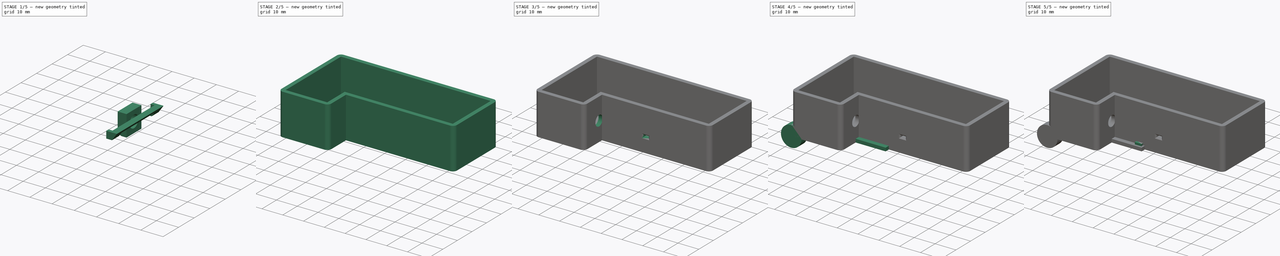
[diagram: build sequence overview — one tinted view per stage of 5, left to right]
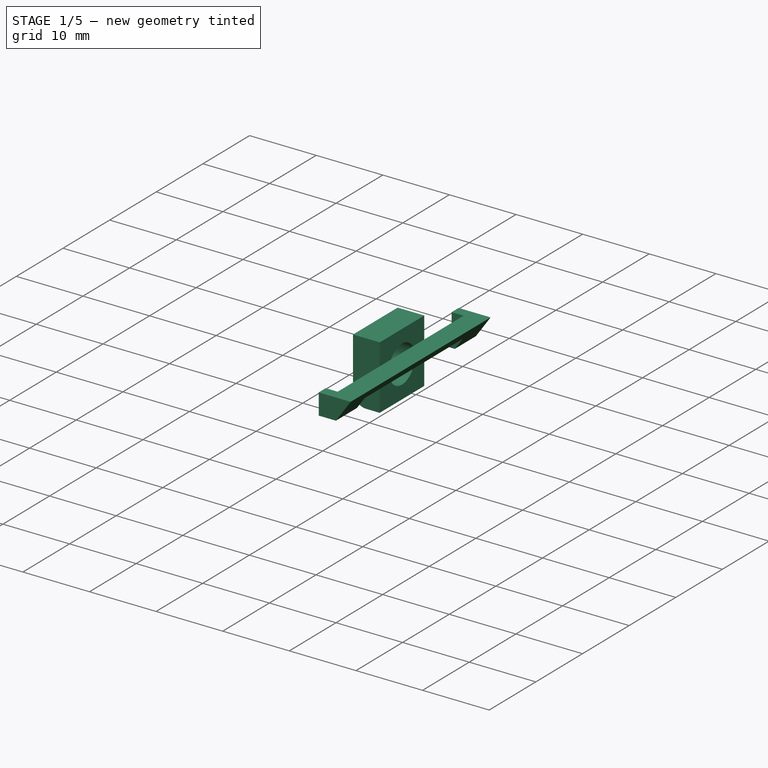
[diagram: stage 1 of 5 — iso view after this stage's code; geometry added in this stage tinted green]
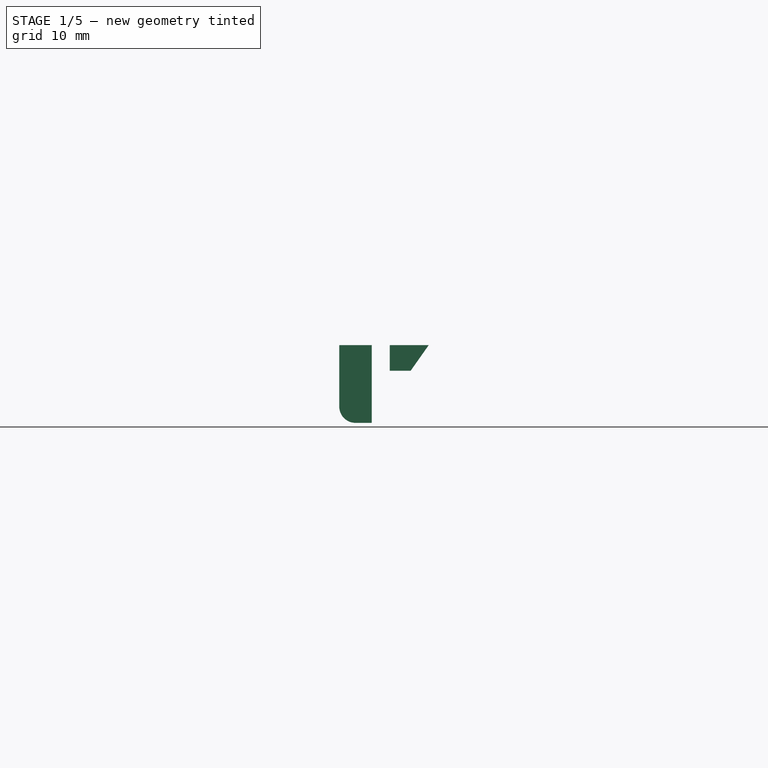
[diagram: stage 1 of 5 — front view after this stage's code; geometry added in this stage tinted green]
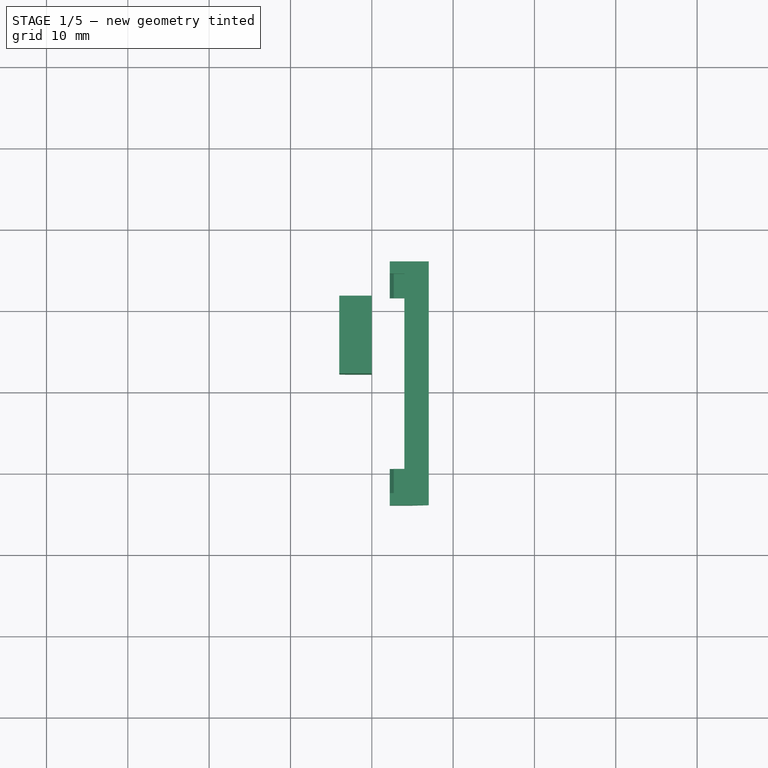
[diagram: stage 1 of 5 — top view after this stage's code; geometry added in this stage tinted green]
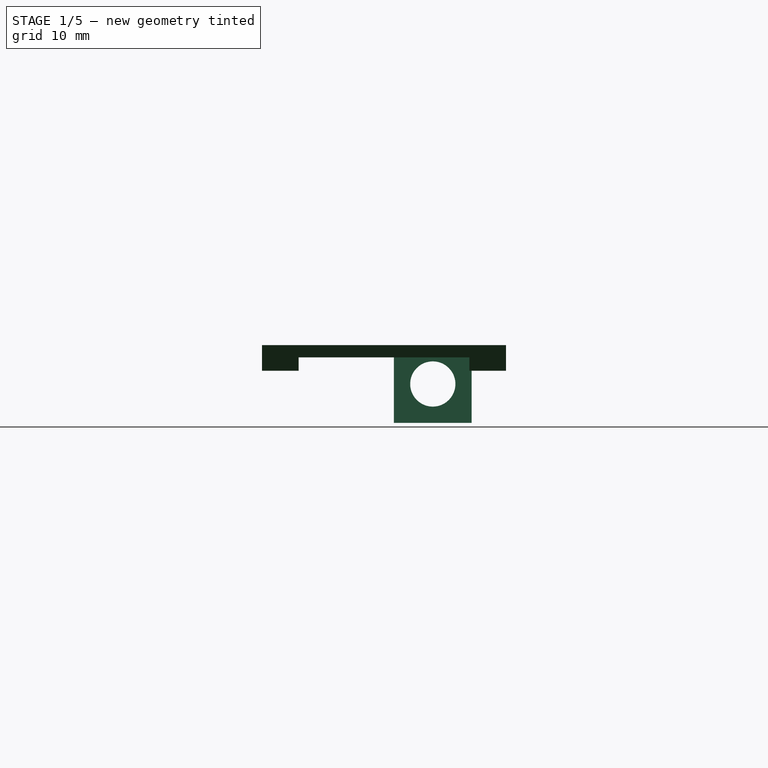
[diagram: stage 1 of 5 — right view after this stage's code; geometry added in this stage tinted green]
FCSTD DOCUMENT  (FreeCAD 0.19R24291 (Git))
Label: UV_Box
License: All rights reserved
LicenseURL: http://en.wikipedia.org/wiki/All_rights_reserved
objects: Sketcher::SketchObject×23, PartDesign::Pad×15, PartDesign::Pocket×8, PartDesign::Body×7, PartDesign::Chamfer×5, PartDesign::Fillet×4, Spreadsheet::Sheet×1, PartDesign::Point×1
note: 95 computed .brp shape members not serialized (recipe doc carries the construction recipe); baked Part::Feature solids carry a one-line shape summary decoded from their .brp

FEATURE [PartDesign::Body] Body  label="Box"
  Group = -> [Sketch,Pad,Fillet,Sketch001,Pocket,Sketch011,Pocket003,Sketch012,Pocket004,Chamfer001,Sketch013,Pad007,Sketch014,Pocket005,Sketch017,Pocket006,Sketch018,Pocket007]
  Origin = -> Origin
  Tip = -> Pocket007
FEATURE [Sketcher::SketchObject] Sketch021
  FullyConstrained = true
  MapMode = 5
  Placement = pos=(0,7.5,0) rot=(1,0,0;1.5708rad)
  expr: Constraints[14] = Spreadsheet.Latch_Depth - 0.2mm
  expr: Constraints[13] = Spreadsheet.Latch_Thickness
  expr: Constraints[19] = Spreadsheet.Wall_Thickness + Spreadsheet.Latch_Depth
  expr: Constraints[15] = Spreadsheet.Latch_Thickness + 0.15mm
  sketch-geometry (8):
    g0: LineSegment StartX=2.2 StartY=-3.15 StartZ=0 EndX=4.77743 EndY=-3.15 EndZ=0
    g1: LineSegment StartX=4.77743 StartY=-3.15 StartZ=0 EndX=7 EndY=0 EndZ=0
    g2: LineSegment StartX=7 StartY=0 StartZ=0 EndX=4 EndY=0 EndZ=0
    g3: LineSegment StartX=4 StartY=0 StartZ=0 EndX=4 EndY=-1.65 EndZ=0
    g4: LineSegment StartX=4 StartY=-1.65 StartZ=0 EndX=2.7 EndY=-1.65 EndZ=0
    g5: LineSegment StartX=2.7 StartY=-1.65 StartZ=0 EndX=2.2 EndY=-2.15 EndZ=0
    g6: LineSegment StartX=2.2 StartY=-2.15 StartZ=0 EndX=2.2 EndY=-3.15 EndZ=0
    g7: LineSegment StartX=4 StartY=-1.65 StartZ=0 EndX=5.22563 EndY=-2.51478 EndZ=0
  constraints (24):
    c: Horizontal(g0)
    c: Coincident(g1,g0)
    c: Horizontal(g2)
    c: Coincident(g3,g2)
    c: Vertical(g3)
    c: Coincident(g4,g3)
    c: Horizontal(g4)
    c: Coincident(g5,g4)
    c: Coincident(g6,g5)
    c: Coincident(g6,g0)
    c: Vertical(g6)
    c: DistanceX(g5,g4) = 0.5
    c: DistanceY(g5,g4) = 0.5
    c: DistanceY(g0,g3) = 1.5
    c: DistanceX(g0,g3) = 1.8
    c: DistanceY(g3,g2) = 1.65
    c: PointOnObject(g2,g-1)
    c: DistanceX(g2,g2) = 3
    c: Coincident(g1,g2)
    c: DistanceX(g-1,g2) = 4
    c: Coincident(g7,g3)
    c: PointOnObject(g7,g1)
    c: Angle(g1,g7) = 1.5708
    c: Distance(g7) = 1.5
FEATURE [PartDesign::Pad] Pad011
  Direction = (1,1,1)
  Length = 27
  Length2 = 100
  Placement = pos=(0,7.5,0) rot=(1,0,0;1.5708rad)
  Profile = -> Sketch021
  Reversed = true
  Type = 0
  expr: Length = Spreadsheet.Latch_Height
FEATURE [Sketcher::SketchObject] Sketch022
  ExternalGeometry = -> [Pad011]
  FullyConstrained = true
  MapMode = 5
  Placement = pos=(2.2,7.5,0) rot=(0.707107,0,-0.707107;3.14159rad)
  Support = -> [Pad011]
  expr: Constraints[9] = Spreadsheet.Latch_Height - 6mm
  sketch-geometry (4):
    g0: LineSegment StartX=1.5 StartY=-3 StartZ=0 EndX=3.15 EndY=-3 EndZ=0
    g1: LineSegment StartX=3.15 StartY=-3 StartZ=0 EndX=3.15 EndY=-24 EndZ=0
    g2: LineSegment StartX=3.15 StartY=-24 StartZ=0 EndX=1.5 EndY=-24 EndZ=0
    g3: LineSegment StartX=1.5 StartY=-24 StartZ=0 EndX=1.5 EndY=-3 EndZ=0
  constraints (12):
    c: Coincident(g0,g1)
    c: Coincident(g1,g2)
    c: Coincident(g2,g3)
    c: Coincident(g3,g0)
    c: Horizontal(g0)
    c: Horizontal(g2)
    c: Vertical(g1)
    c: Vertical(g3)
    c: DistanceY(g0,g-1) = 3
    c: DistanceY(g3,g3) = 21
    c: DistanceX(g-1,g0) = 1.5
    c: PointOnObject(g0,g-3)
FEATURE [PartDesign::Pocket] Pocket008
  BaseFeature = -> Pad011
  Length = 5
  Length2 = 100
  Placement = pos=(0,7.5,0) rot=(1,0,0;1.5708rad)
  Profile = -> Sketch022
  Type = 1
FEATURE [PartDesign::Body] Body005  label="Latch"
  Group = -> [Sketch023,Pad012,Chamfer002]
  Origin = -> Origin005
  Placement = pos=(0,0,19.8) rot=(0,0,1;0rad)
  Tip = -> Chamfer002
  expr: .Placement.Base.z = Spreadsheet.BoxInsideDepth + Spreadsheet.Wall_Thickness
FEATURE [Sketcher::SketchObject] Sketch024
  ExternalGeometry = -> [Pocket008]
  FullyConstrained = true
  MapMode = 5
  Placement = pos=(0,7.5,0) rot=(1,0,0;1.5708rad)
  Support = -> [Pocket008]
  sketch-geometry (4):
    g0: LineSegment StartX=7 StartY=0 StartZ=0 EndX=2.2 EndY=0 EndZ=0
    g1: LineSegment StartX=2.2 StartY=-3.15 StartZ=0 EndX=2.2 EndY=0 EndZ=0
    g2: LineSegment StartX=2.2 StartY=-3.15 StartZ=0 EndX=4.77743 EndY=-3.15 EndZ=0
    g3: LineSegment StartX=4.77743 StartY=-3.15 StartZ=0 EndX=7 EndY=0 EndZ=0
  constraints (9):
    c: Coincident(g0,g-4)
    c: Horizontal(g0)
    c: Coincident(g1,g-5)
    c: Coincident(g1,g0)
    c: Coincident(g2,g1)
    c: Coincident(g2,g-3)
    c: Coincident(g3,g2)
    c: Coincident(g3,g0)
    c: Vertical(g1)
FEATURE [PartDesign::Pad] Pad013
  BaseFeature = -> Pocket008
  Direction = (1,1,1)
  Length = 1.5
  Length2 = 100
  Placement = pos=(0,7.5,0) rot=(1,0,0;1.5708rad)
  Profile = -> Sketch024
  Type = 0
FEATURE [Sketcher::SketchObject] Sketch025
  ExternalGeometry = -> [Pad013]
  FullyConstrained = true
  MapMode = 5
  Placement = pos=(6e-16,34.5,-1.7e-14) rot=(-1,0,0;1.5708rad)
  Support = -> [Pad013]
  sketch-geometry (4):
    g0: LineSegment StartX=7 StartY=-2.2e-15 StartZ=0 EndX=4.77743 EndY=3.15 EndZ=0
    g1: LineSegment StartX=2.2 StartY=3.15 StartZ=0 EndX=4.77743 EndY=3.15 EndZ=0
    g2: LineSegment StartX=2.2 StartY=3.15 StartZ=0 EndX=2.2 EndY=-2.2e-15 EndZ=0
    g3: LineSegment StartX=2.2 StartY=-2.2e-15 StartZ=0 EndX=7 EndY=-2.2e-15 EndZ=0
  constraints (9):
    c: Coincident(g0,g-4)
    c: Coincident(g0,g-4)
    c: Coincident(g1,g-5)
    c: Coincident(g2,g1)
    c: Coincident(g3,g2)
    c: Coincident(g3,g0)
    c: Coincident(g0,g1)
    c: Horizontal(g3)
    c: Vertical(g2)
FEATURE [PartDesign::Pad] Pad014
  BaseFeature = -> Pad013
  Direction = (1,1,1)
  Length = 1.5
  Length2 = 100
  Placement = pos=(0,7.5,0) rot=(1,0,0;1.5708rad)
  Profile = -> Sketch025
  Type = 0
FEATURE [PartDesign::Body] Body004  label="Latch_Hook"
  Group = -> [Sketch021,Pad011,Sketch022,Pocket008,Sketch024,Pad013,Sketch025,Pad014,Chamfer003,Chamfer004]
  Origin = -> Origin004
  Placement = pos=(0,0,19.8) rot=(0,0,1;0rad)
  Tip = -> Chamfer004
  expr: .Placement.Base.z = Spreadsheet.BoxInsideDepth + Spreadsheet.Wall_Thickness
FEATURE [Sketcher::SketchObject] Sketch026
  FullyConstrained = true
  MapMode = 5
  Placement = pos=(0,0,0) rot=(0.57735,0.57735,0.57735;2.0944rad)
  Support = -> [YZ_Plane006]
  expr: Constraints[10] = Spreadsheet.Insert_Radius * 2 + 4mm
  expr: Constraints[14] = Spreadsheet.Insert_Radius
  expr: Constraints[9] = (Spreadsheet.BaseHeight - Spreadsheet.Base_Notch_Height - (Spreadsheet.Insert_Radius * 2 + 4mm)) / 2 + Spreadsheet.Base_Notch_Height
  sketch-geometry (6):
    g0: LineSegment StartX=22.22 StartY=0 StartZ=0 EndX=31.78 EndY=0 EndZ=0
    g1: LineSegment StartX=31.78 StartY=0 StartZ=0 EndX=31.78 EndY=-9.56 EndZ=0
    g2: LineSegment StartX=31.78 StartY=-9.56 StartZ=0 EndX=22.22 EndY=-9.56 EndZ=0
    g3: LineSegment StartX=22.22 StartY=-9.56 StartZ=0 EndX=22.22 EndY=0 EndZ=0
    g4: LineSegment StartX=31.78 StartY=-9.56 StartZ=0 EndX=22.22 EndY=0 EndZ=0
    g5: Circle CenterX=27 CenterY=-4.78 CenterZ=0 NormalX=0 NormalY=0 NormalZ=1 AngleXU=0 Radius=2.78
  constraints (16):
    c: Coincident(g0,g1)
    c: Coincident(g1,g2)
    c: Coincident(g2,g3)
    c: Coincident(g3,g0)
    c: Horizontal(g0)
    c: Horizontal(g2)
    c: Vertical(g1)
    c: Vertical(g3)
    c: PointOnObject(g0,g-1)
    c: DistanceX(g-1,g0) = 22.22
    c: DistanceY(g3,g3) = 9.56
    c: Equal(g1,g2)
    c: Coincident(g4,g1)
    c: Coincident(g4,g0)
    c: Radius(g5) = 2.78
    c: Symmetric(g0,g1,g5)
FEATURE [PartDesign::Pad] Pad015
  Direction = (1,1,1)
  Length = 4
  Length2 = 100
  Placement = pos=(0,0,0) rot=(0.57735,0.57735,0.57735;2.0944rad)
  Profile = -> Sketch026
  Reversed = true
  Type = 0
  expr: Length = Spreadsheet.Insert_Height
FEATURE [PartDesign::Fillet] Fillet003
  Base = -> Pad015 [Edge10]
  BaseFeature = -> Pad015
  Placement = pos=(0,0,0) rot=(0.57735,0.57735,0.57735;2.0944rad)
  Radius = 2
  SupportTransform = false
FEATURE [PartDesign::Body] Body006  label="LatchScrew"
  Group = -> [Sketch026,Pad015,Fillet003]
  Origin = -> Origin006
  Placement = pos=(74,0,19.8) rot=(0,0,1;0rad)
  Tip = -> Fillet003
  expr: .Placement.Base.x = Spreadsheet.BaseWidth - Spreadsheet.Wall_Thickness
  expr: .Placement.Base.z = Spreadsheet.BoxInsideDepth + Spreadsheet.Wall_Thickness
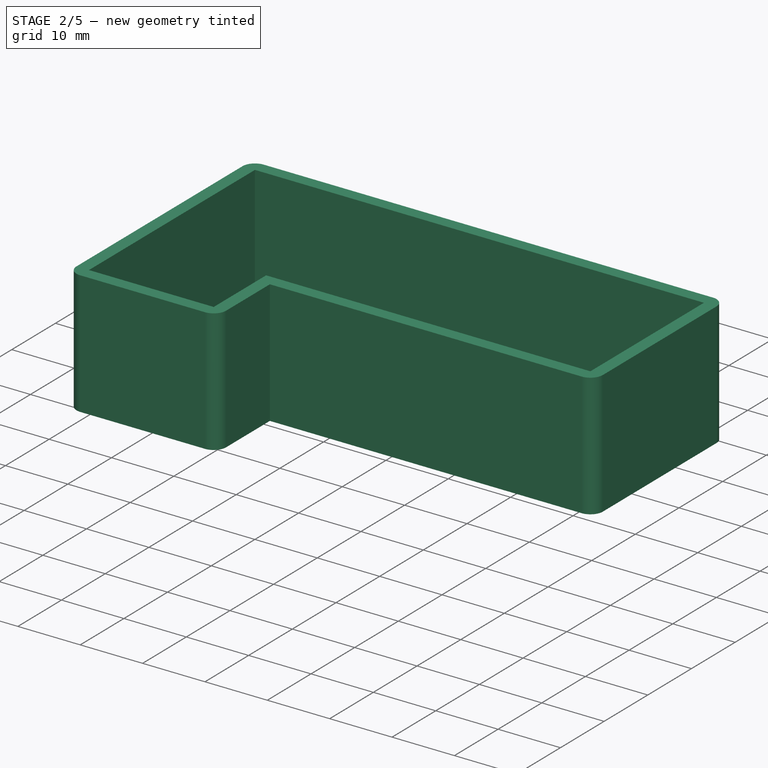
[diagram: stage 2 of 5 — iso view after this stage's code; geometry added in this stage tinted green]
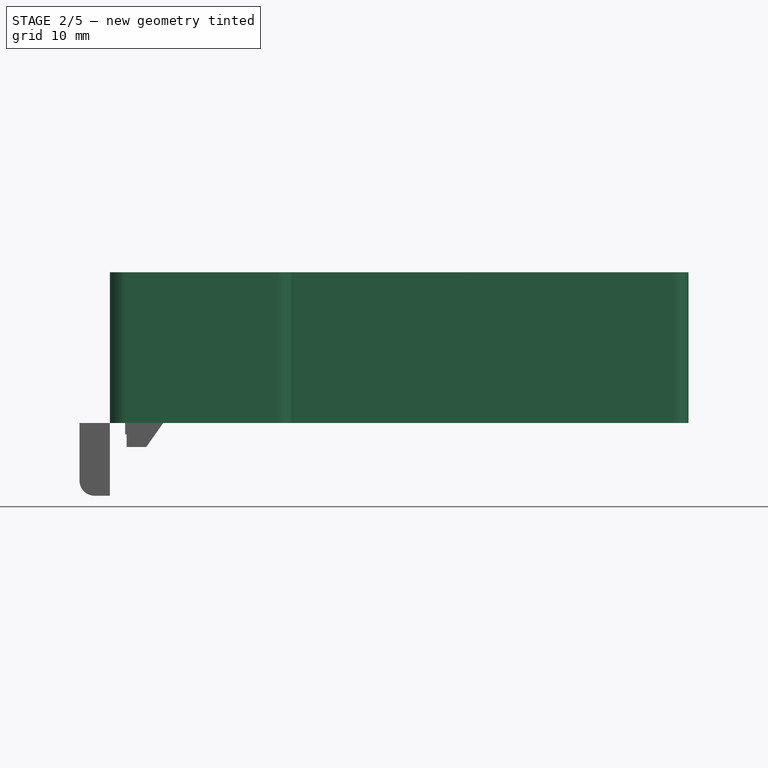
[diagram: stage 2 of 5 — front view after this stage's code; geometry added in this stage tinted green]
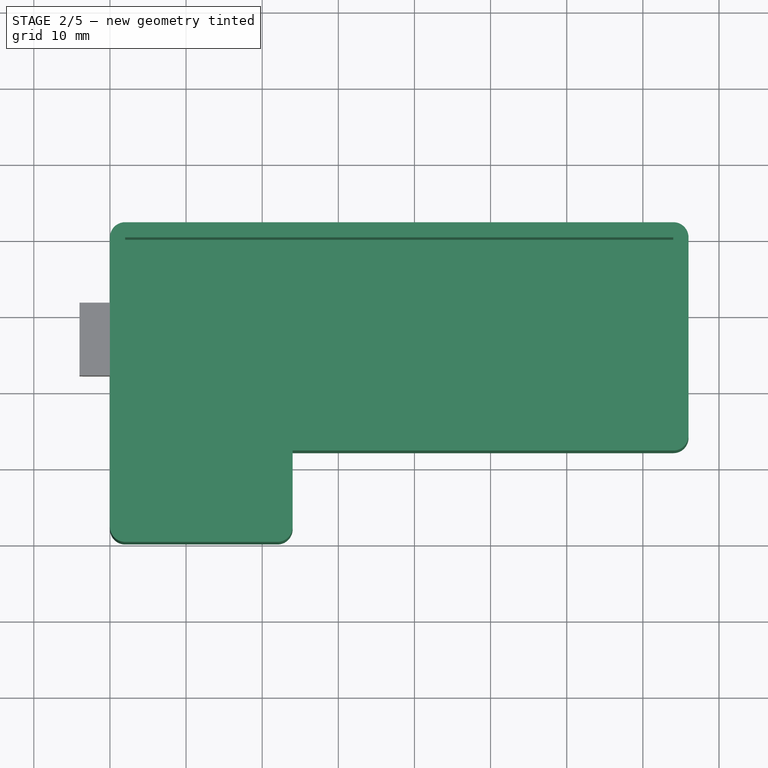
[diagram: stage 2 of 5 — top view after this stage's code; geometry added in this stage tinted green]
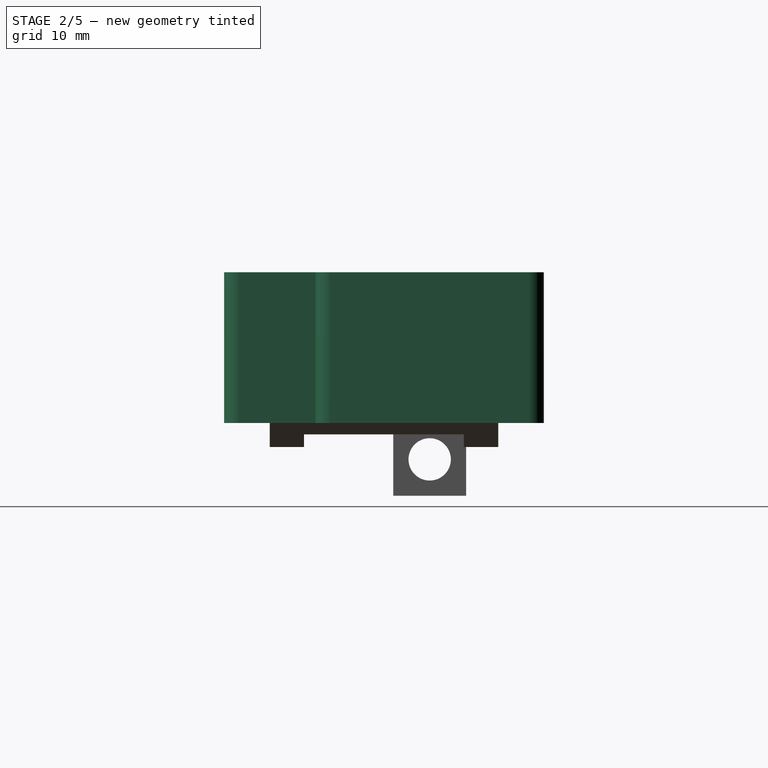
[diagram: stage 2 of 5 — right view after this stage's code; geometry added in this stage tinted green]
FEATURE [Sketcher::SketchObject] Sketch
  FullyConstrained = true
  MapMode = 5
  Support = -> [XY_Plane]
  expr: Constraints[16] = Spreadsheet.BaseHeight
  expr: Constraints[15] = Spreadsheet.Base_Notch_Width
  expr: Constraints[14] = Spreadsheet.Base_Notch_Height
  expr: Constraints[13] = Spreadsheet.BaseWidth
  sketch-geometry (6):
    g0: LineSegment StartX=0 StartY=0 StartZ=0 EndX=0 EndY=42 EndZ=0
    g1: LineSegment StartX=0 StartY=42 StartZ=0 EndX=76 EndY=42 EndZ=0
    g2: LineSegment StartX=76 StartY=42 StartZ=0 EndX=76 EndY=12 EndZ=0
    g3: LineSegment StartX=76 StartY=12 StartZ=0 EndX=24 EndY=12 EndZ=0
    g4: LineSegment StartX=24 StartY=12 StartZ=0 EndX=24 EndY=0 EndZ=0
    g5: LineSegment StartX=24 StartY=0 StartZ=0 EndX=0 EndY=0 EndZ=0
  constraints (17):
    c: Coincident(g0,g-1)
    c: Coincident(g1,g0)
    c: Horizontal(g1)
    c: Coincident(g2,g1)
    c: Vertical(g2)
    c: Coincident(g3,g2)
    c: Horizontal(g3)
    c: Coincident(g4,g3)
    c: Vertical(g4)
    c: Coincident(g5,g4)
    c: Coincident(g5,g0)
    c: Horizontal(g5)
    c: Vertical(g0)
    c: DistanceX(g1,g1) = 76
    c: DistanceY(g4,g4) = 12
    c: DistanceX(g5,g5) = 24
    c: DistanceY(g0,g0) = 42
FEATURE [Spreadsheet::Sheet] Spreadsheet
  cells = A1=BaseHeight; B1(BaseHeight)==42mm; A2=BaseWidth; B2(BaseWidth)==76mm; A3=Standoff_Height; B3(Standoff_Height)==3mm; A4=Wall_Thickness; B4(Wall_Thickness)==2mm; A5=Base_Notch_Height; B5(Base_Notch_Height)==12mm; A6=Base_Notch_Width; B6(Base_Notch_Width)==24mm; A7=BackOfBoardToButtonSpring; B7(BackOfBoardToButtonSpring)==14.8mm; A8=BoxInsideDepth; B8(BoxInsideDepth)==Standoff_Height + BackOfBoardToButtonSpring; A9=Board_X_YPos; B9(Board_XPos)==9mm; C9(Board_YPos)==4.2mm; A10=Board_HoleA; B10(Board_HoleA_X)==12.05mm; C10(Board_HoleA_Y)==18.55mm; A11=Board_HoleB; B11(Board_HoleB_X)==10.2mm; C11(Board_HoleB_Y)==28.55mm; A12=Board_HoleC; B12(Board_HoleC_X)==40.55mm; C12(Board_HoleC_Y)==18.25mm; A13=Insert_Height_Radius; B13(Insert_Height)==4mm; C13(Insert_Radius)==2.78mm; A14=PowerPort_OuterRad_ScrewRad_Flat; B14(PowerPort_OuterRadius)==9.800000000000001mm / 2; C14(PowerPort_ScrewRadius)==7.8mm / 2; D14(PowerPort_Flat)==6.7mm / 2; A15=PowerPort_Dim; B15(PP_X)==67mm; C15(PP_Y)==45mm; D15(PP_Z)==Wall_Thickness + 7mm; A16=Latch_Depth_Thickness_Height; B16(Latch_Depth)==2mm; C16(Latch_Thickness)==1.5mm; D16(Latch_Height)==BaseHeight - 15mm
FEATURE [PartDesign::Pad] Pad  label="MainBody"
  Direction = (1,1,1)
  Length = 19.8
  Length2 = 100
  Profile = -> Sketch
  Type = 0
  expr: Length = Spreadsheet.BoxInsideDepth + Spreadsheet.Wall_Thickness
FEATURE [PartDesign::Fillet] Fillet
  Base = -> Pad [Edge1,Edge14,Edge8,Edge5,Edge2]
  BaseFeature = -> Pad
  Radius = 2
  SupportTransform = false
FEATURE [Sketcher::SketchObject] Sketch001
  ExternalGeometry = -> [Pad]
  FullyConstrained = true
  MapMode = 5
  Placement = pos=(0,0,19.8) rot=(0,0,1;0rad)
  Support = -> [Pad]
  expr: Constraints[16] = Spreadsheet.Wall_Thickness
  expr: Constraints[15] = Spreadsheet.Wall_Thickness
  expr: Constraints[17] = Spreadsheet.Wall_Thickness
  expr: Constraints[14] = Spreadsheet.Wall_Thickness
  expr: Constraints[13] = Spreadsheet.Wall_Thickness
  expr: Constraints[12] = Spreadsheet.Wall_Thickness
  sketch-geometry (6):
    g0: LineSegment StartX=2 StartY=40 StartZ=0 EndX=74 EndY=40 EndZ=0
    g1: LineSegment StartX=74 StartY=40 StartZ=0 EndX=74 EndY=14 EndZ=0
    g2: LineSegment StartX=74 StartY=14 StartZ=0 EndX=22 EndY=14 EndZ=0
    g3: LineSegment StartX=22 StartY=14 StartZ=0 EndX=22 EndY=2 EndZ=0
    g4: LineSegment StartX=22 StartY=2 StartZ=0 EndX=2 EndY=2 EndZ=0
    g5: LineSegment StartX=2 StartY=2 StartZ=0 EndX=2 EndY=40 EndZ=0
  constraints (18):
    c: Horizontal(g0)
    c: Coincident(g1,g0)
    c: Vertical(g1)
    c: Coincident(g2,g1)
    c: Horizontal(g2)
    c: Coincident(g3,g2)
    c: Coincident(g4,g3)
    c: Horizontal(g4)
    c: Coincident(g5,g4)
    c: Coincident(g5,g0)
    c: Vertical(g5)
    c: Vertical(g3)
    c: DistanceX(g1,g-6) = 2
    c: DistanceX(g-1,g4) = 2
    c: DistanceX(g2,g-5) = 2
    c: DistanceY(g-4,g3) = 2
    c: DistanceY(g0,g-8) = 2
    c: DistanceY(g-5,g2) = 2
FEATURE [PartDesign::Pocket] Pocket  label="Pocket_Inside"
  BaseFeature = -> Fillet
  Length = 17.8
  Length2 = 100
  Profile = -> Sketch001
  Type = 0
  expr: Length = Spreadsheet.BoxInsideDepth
FEATURE [Sketcher::SketchObject] Sketch023
  FullyConstrained = true
  MapMode = 5
  Support = -> [XY_Plane005]
  expr: Constraints[11] = Spreadsheet.Latch_Height - 0.3mm
  expr: Constraints[10] = Spreadsheet.Latch_Depth
  expr: Constraints[9] = Spreadsheet.Wall_Thickness
  expr: Constraints[8] = (Spreadsheet.BaseHeight - Spreadsheet.Latch_Height) / 2 + 0.3mm / 2
  sketch-geometry (4):
    g0: LineSegment StartX=2 StartY=34.35 StartZ=0 EndX=4 EndY=34.35 EndZ=0
    g1: LineSegment StartX=4 StartY=34.35 StartZ=0 EndX=4 EndY=7.65 EndZ=0
    g2: LineSegment StartX=4 StartY=7.65 StartZ=0 EndX=2 EndY=7.65 EndZ=0
    g3: LineSegment StartX=2 StartY=7.65 StartZ=0 EndX=2 EndY=34.35 EndZ=0
  constraints (12):
    c: Coincident(g0,g1)
    c: Coincident(g1,g2)
    c: Coincident(g2,g3)
    c: Coincident(g3,g0)
    c: Horizontal(g0)
    c: Horizontal(g2)
    c: Vertical(g1)
    c: Vertical(g3)
    c: DistanceY(g-1,g2) = 7.65
    c: DistanceX(g-1,g2) = 2
    c: DistanceX(g2,g2) = 2
    c: DistanceY(g3,g3) = 26.7
FEATURE [PartDesign::Pad] Pad012
  Direction = (1,1,1)
  Length = 1.5
  Length2 = 100
  Profile = -> Sketch023
  Reversed = true
  Type = 0
  expr: Length = Spreadsheet.Latch_Thickness
FEATURE [PartDesign::Chamfer] Chamfer002
  Angle = 45
  Base = -> Pad012 [Edge7]
  BaseFeature = -> Pad012
  ChamferType = 0
  FlipDirection = false
  Size = 0.5
  Size2 = 1
  SupportTransform = false
FEATURE [PartDesign::Chamfer] Chamfer003
  Angle = 45
  Base = -> Pad014 [Edge62]
  BaseFeature = -> Pad014
  ChamferType = 0
  FlipDirection = false
  Placement = pos=(0,7.5,0) rot=(1,0,0;1.5708rad)
  Size = 0.25
  Size2 = 1
  SupportTransform = false
FEATURE [PartDesign::Chamfer] Chamfer004
  Angle = 45
  Base = -> Chamfer003 [Edge51]
  BaseFeature = -> Chamfer003
  ChamferType = 0
  FlipDirection = false
  Placement = pos=(0,7.5,0) rot=(1,0,0;1.5708rad)
  Size = 0.25
  Size2 = 1
  SupportTransform = false
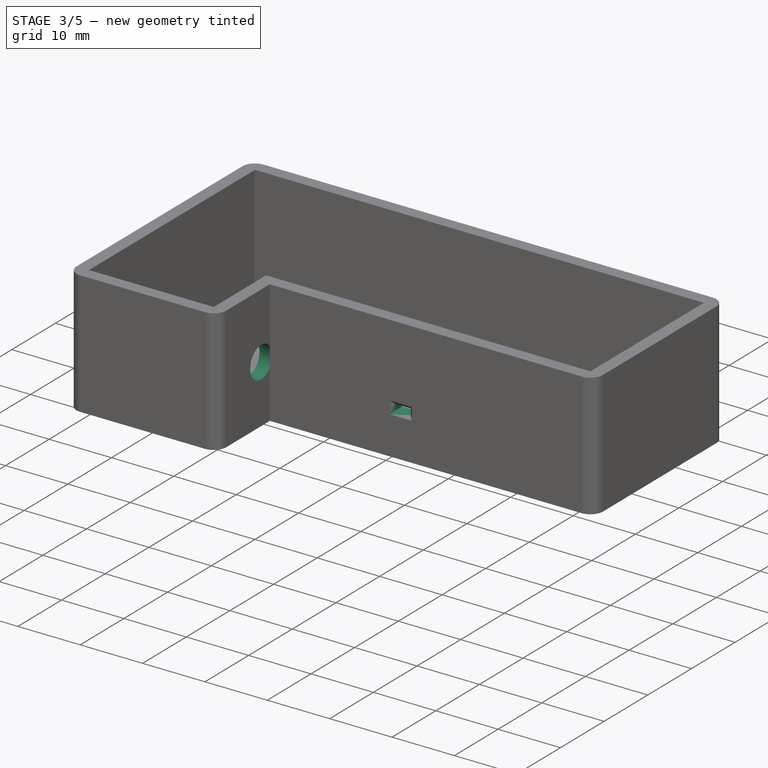
[diagram: stage 3 of 5 — iso view after this stage's code; geometry added in this stage tinted green]
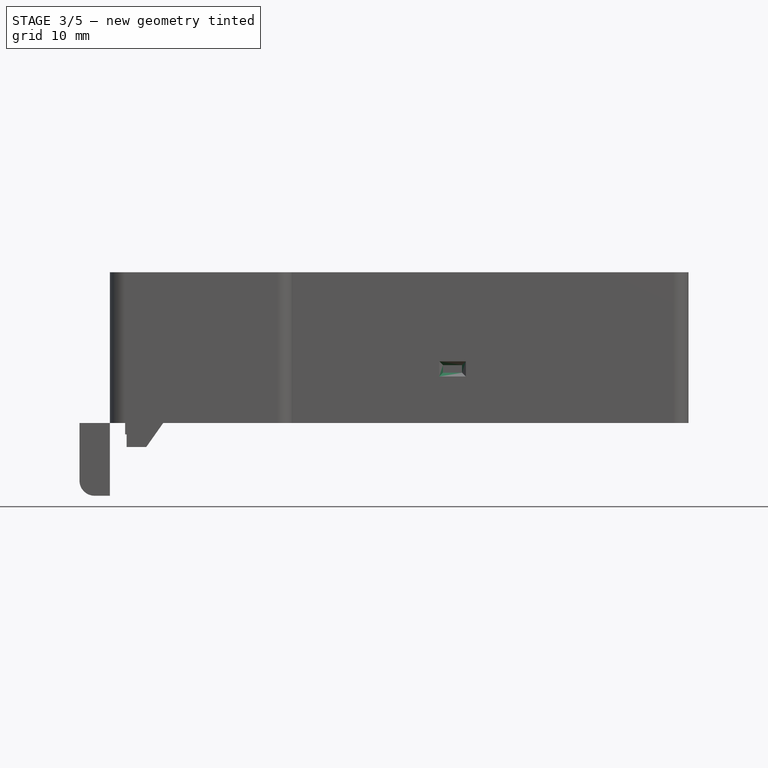
[diagram: stage 3 of 5 — front view after this stage's code; geometry added in this stage tinted green]
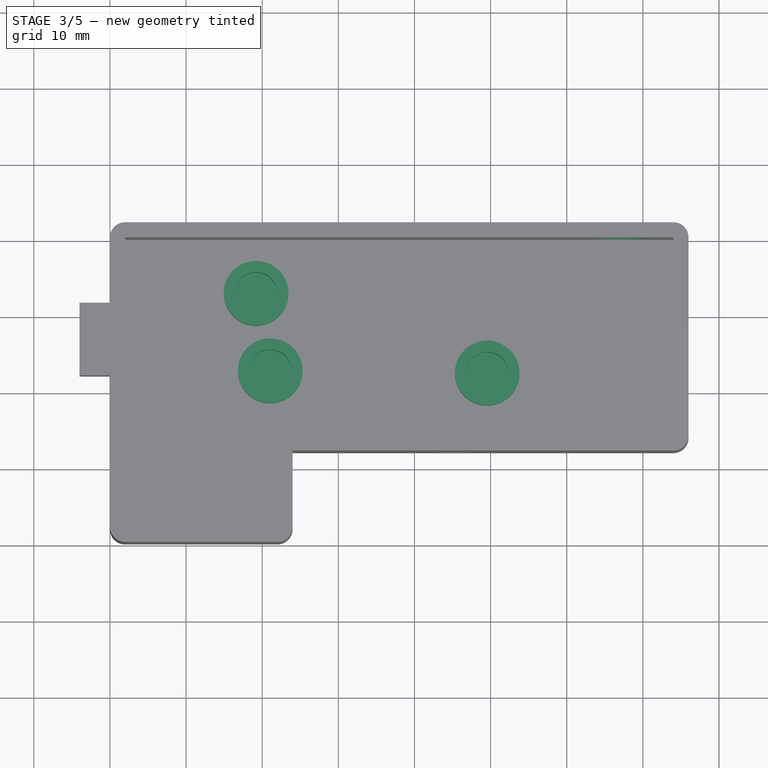
[diagram: stage 3 of 5 — top view after this stage's code; geometry added in this stage tinted green]
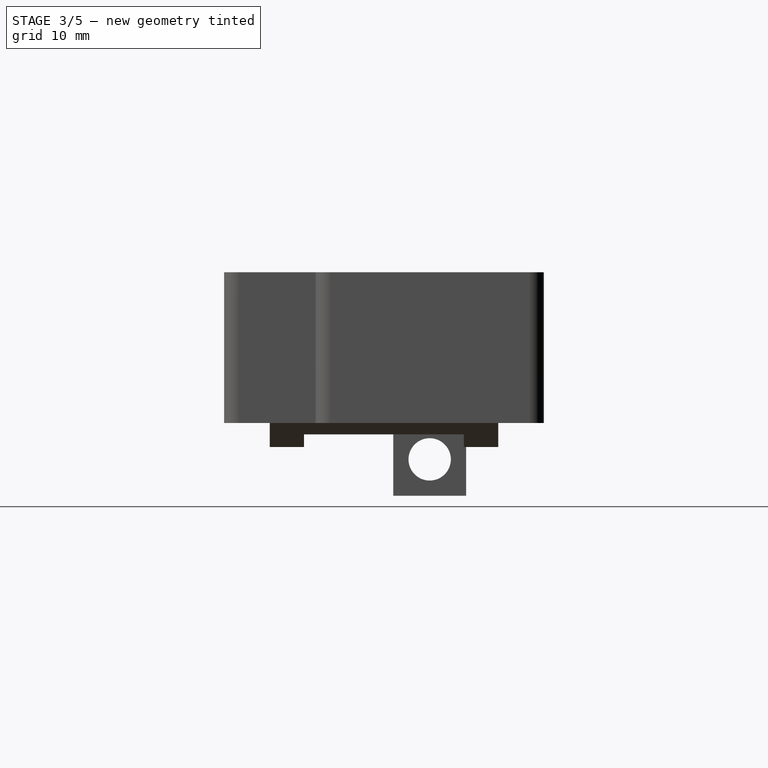
[diagram: stage 3 of 5 — right view after this stage's code; geometry added in this stage tinted green]
FEATURE [PartDesign::Body] Body001  label="BoardMockup"
  Group = -> [Sketch002,Pad001,Sketch003,Pad002,Sketch004,Pad003,Sketch006,Pad004,DatumPoint,Sketch009,Pad006]
  Origin = -> Origin001
  Placement = pos=(9,4.2,5) rot=(0,0,1;0rad)
  Tip = -> Pad006
  expr: .Placement.Base.z = Spreadsheet.Wall_Thickness + Spreadsheet.Standoff_Height
  expr: .Placement.Base.x = 9mm
FEATURE [Sketcher::SketchObject] Sketch011
  FullyConstrained = true
  MapMode = 5
  Placement = pos=(24,0,0) rot=(0.57735,0.57735,0.57735;2.0944rad)
  expr: Constraints[1] = Spreadsheet.Standoff_Height + Spreadsheet.Wall_Thickness + 4.3mm
  expr: Constraints[2] = Spreadsheet.Board_YPos + 5.8mm
  sketch-geometry (1):
    g0: Circle CenterX=10 CenterY=9.3 CenterZ=0 NormalX=0 NormalY=0 NormalZ=1 AngleXU=0 Radius=2.5
  constraints (3):
    c: Radius(g0) = 2.5
    c: DistanceY(g-1,g0) = 9.3
    c: DistanceX(g-1,g0) = 10
FEATURE [PartDesign::Pocket] Pocket003
  BaseFeature = -> Pocket
  Length = 5
  Length2 = 100
  Profile = -> Sketch011
  Type = 0
FEATURE [Sketcher::SketchObject] Sketch012
  FullyConstrained = true
  MapMode = 5
  Placement = pos=(0,12,0) rot=(1,0,0;1.5708rad)
  Support = -> [Pocket003]
  expr: Constraints[11] = Spreadsheet.Wall_Thickness + Spreadsheet.Standoff_Height + 1.6mm
  expr: Constraints[12] = Spreadsheet.Board_XPos + 36mm
  sketch-geometry (5):
    g0: LineSegment StartX=43.75 StartY=7.6 StartZ=0 EndX=46.25 EndY=7.6 EndZ=0
    g1: LineSegment StartX=46.25 StartY=7.6 StartZ=0 EndX=46.25 EndY=6.6 EndZ=0
    g2: LineSegment StartX=46.25 StartY=6.6 StartZ=0 EndX=43.75 EndY=6.6 EndZ=0
    g3: LineSegment StartX=43.75 StartY=6.6 StartZ=0 EndX=43.75 EndY=7.6 EndZ=0
    g4: GeomPoint X=45 Y=6.6 Z=0
  constraints (13):
    c: Coincident(g0,g1)
    c: Coincident(g1,g2)
    c: Coincident(g2,g3)
    c: Coincident(g3,g0)
    c: Horizontal(g0)
    c: Horizontal(g2)
    c: Vertical(g1)
    c: Vertical(g3)
    c: DistanceY(g1,g1) = 1
    c: DistanceX(g0,g0) = 2.5
    c: Symmetric(g1,g2,g4)
    c: DistanceY(g-1,g1) = 6.6
    c: DistanceX(g-1,g4) = 45
FEATURE [PartDesign::Pocket] Pocket004
  BaseFeature = -> Pocket003
  Length = 5
  Length2 = 100
  Profile = -> Sketch012
  Type = 2
  expr: Length = 5mm
FEATURE [PartDesign::Chamfer] Chamfer001
  Angle = 45
  Base = -> Pocket004 [Edge45,Edge44,Edge43,Edge46]
  BaseFeature = -> Pocket004
  ChamferType = 0
  FlipDirection = false
  Size = 0.5
  Size2 = 1
  SupportTransform = false
FEATURE [Sketcher::SketchObject] Sketch013
  FullyConstrained = true
  MapMode = 5
  Placement = pos=(0,0,2) rot=(0,0,1;0rad)
  Support = -> [Chamfer001]
  expr: Constraints[8] = Spreadsheet.Board_YPos + Spreadsheet.Board_HoleC_Y
  expr: Constraints[7] = Spreadsheet.Board_XPos + Spreadsheet.Board_HoleC_X
  expr: Constraints[6] = Spreadsheet.Board_XPos + Spreadsheet.Board_HoleB_X
  expr: Constraints[4] = Spreadsheet.Board_YPos + Spreadsheet.Board_HoleA_Y
  expr: Constraints[3] = Spreadsheet.Board_XPos + Spreadsheet.Board_HoleA_X
  sketch-geometry (3):
    g0: Circle CenterX=19.2 CenterY=32.92 CenterZ=0 NormalX=0 NormalY=0 NormalZ=1 AngleXU=0 Radius=4.25
    g1: Circle CenterX=21.05 CenterY=22.75 CenterZ=0 NormalX=0 NormalY=0 NormalZ=1 AngleXU=0 Radius=4.25
    g2: Circle CenterX=49.55 CenterY=22.45 CenterZ=0 NormalX=0 NormalY=0 NormalZ=1 AngleXU=0 Radius=4.25
  constraints (9):
    c: Radius(g0) = 4.25
    c: Equal(g0,g2)
    c: Equal(g1,g0)
    c: DistanceX(g-1,g1) = 21.05
    c: DistanceY(g-1,g1) = 22.75
    c: DistanceY(g-1,g0) = 32.92
    c: DistanceX(g-1,g0) = 19.2
    c: DistanceX(g-1,g2) = 49.55
    c: DistanceY(g-1,g2) = 22.45
FEATURE [PartDesign::Pad] Pad007
  BaseFeature = -> Chamfer001
  Direction = (1,1,1)
  Length = 3
  Length2 = 100
  Profile = -> Sketch013
  Type = 0
  expr: Length = Spreadsheet.Standoff_Height
FEATURE [Sketcher::SketchObject] Sketch014
  ExternalGeometry = -> [Pad007]
  FullyConstrained = true
  MapMode = 5
  Placement = pos=(0,0,5) rot=(0,0,1;0rad)
  Support = -> [Pad007]
  expr: Constraints[3] = Spreadsheet.Insert_Radius
  sketch-geometry (3):
    g0: Circle CenterX=21.05 CenterY=22.75 CenterZ=0 NormalX=0 NormalY=0 NormalZ=1 AngleXU=0 Radius=2.78
    g1: Circle CenterX=19.2 CenterY=32.92 CenterZ=0 NormalX=0 NormalY=0 NormalZ=1 AngleXU=0 Radius=2.78
    g2: Circle CenterX=49.55 CenterY=22.45 CenterZ=0 NormalX=0 NormalY=0 NormalZ=1 AngleXU=0 Radius=2.78
  constraints (6):
    c: Coincident(g0,g-5)
    c: Coincident(g1,g-4)
    c: Coincident(g2,g-3)
    c: Radius(g0) = 2.78
    c: Equal(g0,g1)
    c: Equal(g0,g2)
FEATURE [PartDesign::Pocket] Pocket005
  BaseFeature = -> Pad007
  Length = 4
  Length2 = 100
  Profile = -> Sketch014
  Type = 0
  expr: Length = Spreadsheet.Insert_Height
FEATURE [PartDesign::Body] Body003  label="PowerMockup"
  Group = -> [Sketch015,Pad008,Sketch016,Pad009]
  Origin = -> Origin003
  Placement = pos=(67,45,9) rot=(0,0,1;3.14159rad)
  Tip = -> Pad009
  expr: .Placement.Base.y = 45mm
  expr: .Placement.Base.z = Spreadsheet.PP_Z
FEATURE [Sketcher::SketchObject] Sketch017
  FullyConstrained = true
  MapMode = 5
  Placement = pos=(0,42,0) rot=(0,0.707107,0.707107;3.14159rad)
  Support = -> [Pocket005]
  expr: Constraints[12] = Spreadsheet.PP_Z
  expr: Constraints[11] = Spreadsheet.PP_X
  expr: Constraints[9] = Spreadsheet.PowerPort_ScrewRadius
  expr: Constraints[8] = Spreadsheet.PowerPort_Flat
  expr: Constraints[7] = Spreadsheet.PowerPort_Flat
  sketch-geometry (4):
    g0: ArcOfCircle CenterX=-67 CenterY=9 CenterZ=0 NormalX=0 NormalY=0 NormalZ=1 AngleXU=0 Radius=3.9 StartAngle=0.537533 EndAngle=2.60406
    g1: ArcOfCircle CenterX=-67 CenterY=9 CenterZ=0 NormalX=0 NormalY=0 NormalZ=1 AngleXU=0 Radius=3.9 StartAngle=3.67913 EndAngle=5.74565
    g2: LineSegment StartX=-63.65 StartY=7.00313 StartZ=0 EndX=-63.65 EndY=10.9969 EndZ=0
    g3: LineSegment StartX=-70.35 StartY=7.00313 StartZ=0 EndX=-70.35 EndY=10.9969 EndZ=0
  constraints (13):
    c: Coincident(g1,g0)
    c: Coincident(g2,g1)
    c: Coincident(g2,g0)
    c: Coincident(g3,g1)
    c: Coincident(g3,g0)
    c: Vertical(g3)
    c: Vertical(g2)
    c: DistanceX(g0,g1) = 3.35
    c: DistanceX(g1,g0) = 3.35
    c: Radius(g0) = 3.9
    c: Equal(g0,g1)
    c: DistanceX(g0,g-1) = 67
    c: DistanceY(g-1,g0) = 9
FEATURE [PartDesign::Pocket] Pocket006
  BaseFeature = -> Pocket005
  Length = 5
  Length2 = 100
  Profile = -> Sketch017
  Type = 2
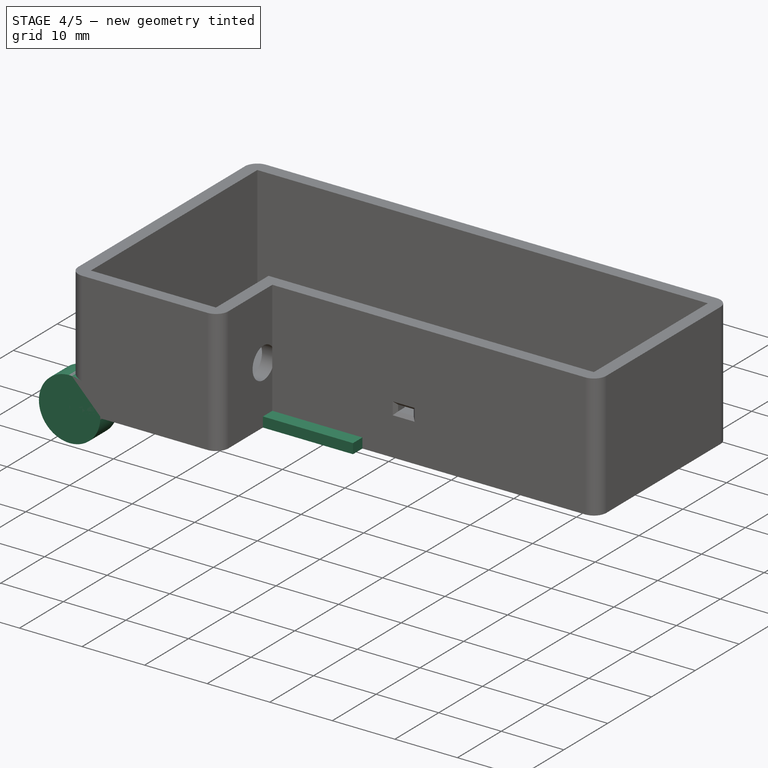
[diagram: stage 4 of 5 — iso view after this stage's code; geometry added in this stage tinted green]
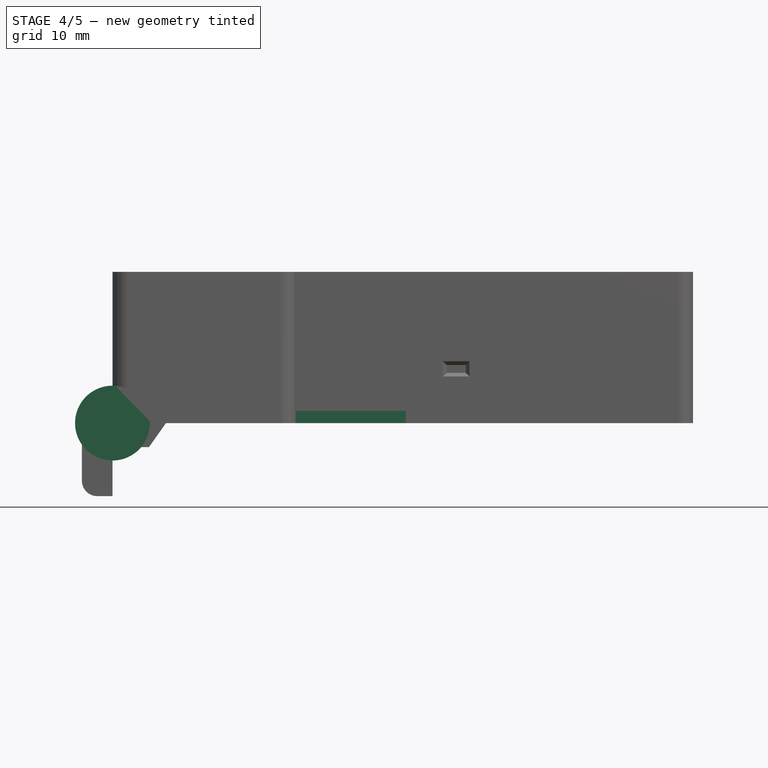
[diagram: stage 4 of 5 — front view after this stage's code; geometry added in this stage tinted green]
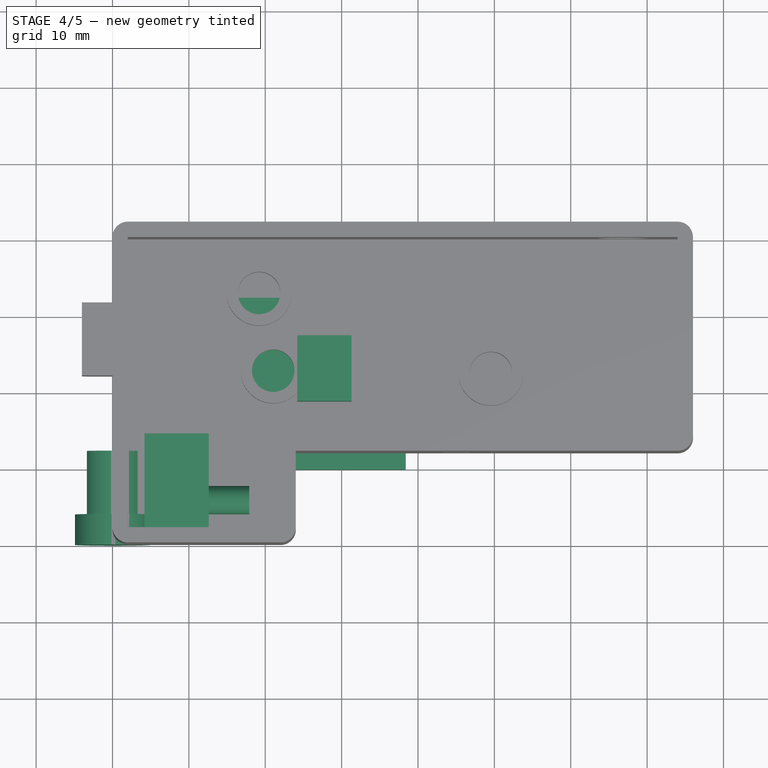
[diagram: stage 4 of 5 — top view after this stage's code; geometry added in this stage tinted green]
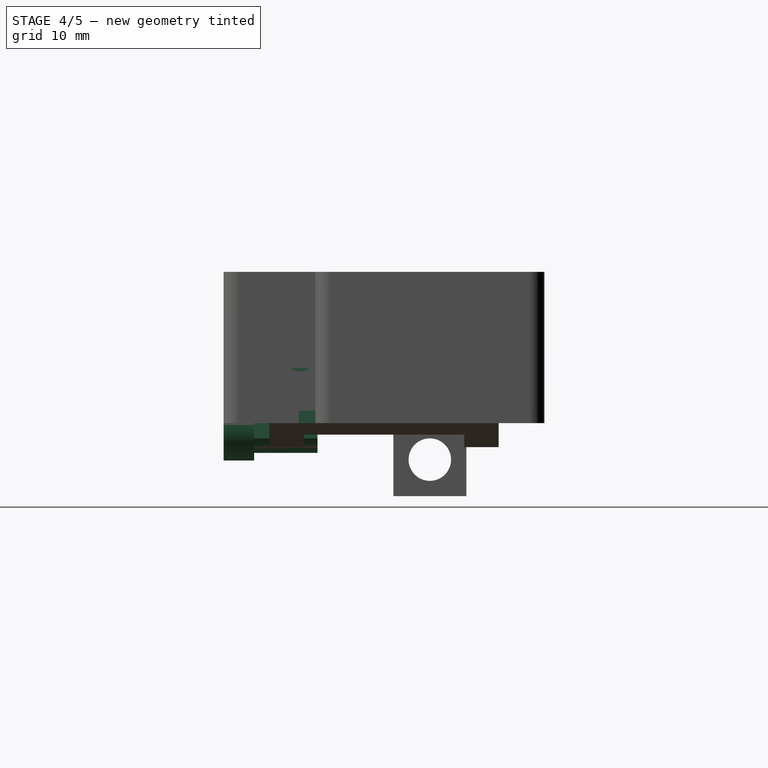
[diagram: stage 4 of 5 — right view after this stage's code; geometry added in this stage tinted green]
FEATURE [Sketcher::SketchObject] Sketch002
  FullyConstrained = true
  MapMode = 5
  Support = -> [XY_Plane001]
  expr: Constraints[43] = Spreadsheet.Board_HoleC_Y
  expr: Constraints[35] = Spreadsheet.Board_HoleC_X
  expr: Constraints[41] = Spreadsheet.Board_HoleB_X
  expr: Constraints[42] = Spreadsheet.Board_HoleB_Y
  expr: Constraints[40] = Spreadsheet.Board_HoleA_Y
  expr: Constraints[39] = Spreadsheet.Board_HoleA_X
  sketch-geometry (15):
    g0: LineSegment StartX=0 StartY=0 StartZ=0 EndX=0 EndY=32.35 EndZ=0
    g1: LineSegment StartX=0 StartY=32.35 StartZ=0 EndX=23 EndY=32.35 EndZ=0
    g2: LineSegment StartX=23 StartY=32.35 StartZ=0 EndX=23 EndY=27.85 EndZ=0
    g3: LineSegment StartX=23 StartY=27.85 StartZ=0 EndX=38.4 EndY=27.85 EndZ=0
    g4: LineSegment StartX=38.4 StartY=27.85 StartZ=0 EndX=38.4 EndY=22.35 EndZ=0
    g5: LineSegment StartX=0 StartY=0 StartZ=0 EndX=13 EndY=0 EndZ=0
    g6: LineSegment StartX=13 StartY=0 StartZ=0 EndX=13 EndY=9.85 EndZ=0
    g7: LineSegment StartX=13 StartY=9.85 StartZ=0 EndX=38.4 EndY=9.85 EndZ=0
    g8: LineSegment StartX=38.4 StartY=9.85 StartZ=0 EndX=38.4 EndY=14.85 EndZ=0
    g9: LineSegment StartX=38.4 StartY=14.85 StartZ=0 EndX=43.4 EndY=14.85 EndZ=0
    g10: LineSegment StartX=43.4 StartY=22.35 StartZ=0 EndX=38.4 EndY=22.35 EndZ=0
    g11: LineSegment StartX=43.4 StartY=14.85 StartZ=0 EndX=43.4 EndY=22.35 EndZ=0
    g12: Circle CenterX=40.55 CenterY=18.25 CenterZ=0 NormalX=0 NormalY=0 NormalZ=1 AngleXU=0 Radius=1.5
    g13: Circle CenterX=10.2 CenterY=28.55 CenterZ=0 NormalX=0 NormalY=0 NormalZ=1 AngleXU=0 Radius=1.5
    g14: Circle CenterX=12.05 CenterY=18.55 CenterZ=0 NormalX=0 NormalY=0 NormalZ=1 AngleXU=0 Radius=1.5
  constraints (44):
    c: Coincident(g0,g-1)
    c: Vertical(g0)
    c: Coincident(g1,g0)
    c: Horizontal(g1)
    c: Coincident(g2,g1)
    c: Vertical(g2)
    c: Coincident(g3,g2)
    c: Horizontal(g3)
    c: Coincident(g4,g3)
    c: Vertical(g4)
    c: Coincident(g5,g0)
    c: Horizontal(g5)
    c: Coincident(g6,g5)
    c: Vertical(g6)
    c: Coincident(g7,g6)
    c: Horizontal(g7)
    c: DistanceY(g0,g0) = 32.35
    c: DistanceX(g1,g1) = 23
    c: DistanceY(g6,g1) = 22.5
    c: DistanceY(g7,g3) = 18
    c: DistanceX(g5,g5) = 13
    c: DistanceX(g0,g7) = 38.4
    c: DistanceX(g0,g3) = 38.4
    c: Coincident(g8,g7)
    c: Vertical(g8)
    c: Coincident(g9,g8)
    c: Horizontal(g9)
    c: Horizontal(g10)
    c: DistanceY(g8,g8) = 5
    c: Coincident(g10,g4)
    c: DistanceX(g9,g9) = 5
    c: Coincident(g11,g9)
    c: Coincident(g11,g10)
    c: Vertical(g11)
    c: DistanceY(g11,g11) = 7.5
    c: DistanceX(g0,g12) = 40.55
    c: Radius(g12) = 1.5
    c: Radius(g14) = 1.5
    c: Radius(g13) = 1.5
    c: DistanceX(g0,g14) = 12.05
    c: DistanceY(g0,g14) = 18.55
    c: DistanceX(g0,g13) = 10.2
    c: DistanceY(g0,g13) = 28.55
    c: DistanceY(g0,g12) = 18.25
FEATURE [PartDesign::Pad] Pad001  label="Board"
  Direction = (1,1,1)
  Length = 1.6
  Length2 = 100
  Profile = -> Sketch002
  Type = 0
FEATURE [Sketcher::SketchObject] Sketch003
  ExternalGeometry = -> [Pad001]
  FullyConstrained = true
  MapMode = 5
  Placement = pos=(0,0,1.6) rot=(0,0,1;0rad)
  Support = -> [Pad001]
  sketch-geometry (4):
    g0: LineSegment StartX=4.2 StartY=14.5 StartZ=0 EndX=12.6 EndY=14.5 EndZ=0
    g1: LineSegment StartX=12.6 StartY=14.5 StartZ=0 EndX=12.6 EndY=1.5 EndZ=0
    g2: LineSegment StartX=12.6 StartY=1.5 StartZ=0 EndX=4.2 EndY=1.5 EndZ=0
    g3: LineSegment StartX=4.2 StartY=1.5 StartZ=0 EndX=4.2 EndY=14.5 EndZ=0
  constraints (12):
    c: Coincident(g0,g1)
    c: Coincident(g1,g2)
    c: Coincident(g2,g3)
    c: Coincident(g3,g0)
    c: Horizontal(g0)
    c: Horizontal(g2)
    c: Vertical(g1)
    c: Vertical(g3)
    c: DistanceY(g1,g1) = 13
    c: DistanceX(g2,g2) = 8.4
    c: DistanceY(g-1,g2) = 1.5
    c: DistanceX(g1,g-3) = 0.4
FEATURE [PartDesign::Pad] Pad002  label="Switch"
  BaseFeature = -> Pad001
  Direction = (1,1,1)
  Length = 5.6
  Length2 = 100
  Profile = -> Sketch003
  Type = 0
FEATURE [Sketcher::SketchObject] Sketch004
  FullyConstrained = true
  MapMode = 5
  Placement = pos=(12.6,0,0) rot=(0.57735,0.57735,0.57735;2.0944rad)
  Support = -> [Pad002]
  sketch-geometry (1):
    g0: Circle CenterX=5.8 CenterY=4.3 CenterZ=0 NormalX=0 NormalY=0 NormalZ=1 AngleXU=0 Radius=1.85
  constraints (3):
    c: Radius(g0) = 1.85
    c: DistanceY(g-1,g0) = 4.3
    c: DistanceX(g-1,g0) = 5.8
FEATURE [PartDesign::Pad] Pad003  label="SwitchArm"
  BaseFeature = -> Pad002
  Direction = (1,1,1)
  Length = 5.3
  Length2 = 100
  Profile = -> Sketch004
  Type = 0
FEATURE [Sketcher::SketchObject] Sketch006
  ExternalGeometry = -> [Pad003]
  FullyConstrained = true
  MapMode = 5
  Placement = pos=(0,0,1.6) rot=(0,0,1;0rad)
  Support = -> [Pad003]
  sketch-geometry (4):
    g0: LineSegment StartX=24.2 StartY=27.35 StartZ=0 EndX=31.3 EndY=27.35 EndZ=0
    g1: LineSegment StartX=31.3 StartY=27.35 StartZ=0 EndX=31.3 EndY=18.75 EndZ=0
    g2: LineSegment StartX=31.3 StartY=18.75 StartZ=0 EndX=24.2 EndY=18.75 EndZ=0
    g3: LineSegment StartX=24.2 StartY=18.75 StartZ=0 EndX=24.2 EndY=27.35 EndZ=0
  constraints (12):
    c: Coincident(g0,g1)
    c: Coincident(g1,g2)
    c: Coincident(g2,g3)
    c: Coincident(g3,g0)
    c: Horizontal(g0)
    c: Horizontal(g2)
    c: Vertical(g1)
    c: Vertical(g3)
    c: DistanceX(g0,g0) = 7.1
    c: DistanceY(g1,g1) = 8.6
    c: DistanceX(g-1,g1) = 31.3
    c: DistanceY(g1,g-3) = 9.1
FEATURE [PartDesign::Pad] Pad004  label="Button"
  BaseFeature = -> Pad003
  Direction = (1,1,1)
  Length = 5.4
  Length2 = 100
  Profile = -> Sketch006
  Type = 0
FEATURE [Sketcher::SketchObject] Sketch015
  FullyConstrained = true
  MapMode = 5
  Placement = pos=(0,0,0) rot=(1,0,0;1.5708rad)
  Support = -> [XZ_Plane003]
  expr: Constraints[1] = Spreadsheet.PowerPort_OuterRadius
  sketch-geometry (1):
    g0: Circle CenterX=0 CenterY=0 CenterZ=0 NormalX=0 NormalY=0 NormalZ=1 AngleXU=0 Radius=4.9
  constraints (2):
    c: Coincident(g0,g-1)
    c: Radius(g0) = 4.9
FEATURE [PartDesign::Pad] Pad008
  Direction = (1,1,1)
  Length = 4
  Length2 = 100
  Placement = pos=(0,0,0) rot=(1,0,0;1.5708rad)
  Profile = -> Sketch015
  Reversed = true
  Type = 0
FEATURE [Sketcher::SketchObject] Sketch016
  FullyConstrained = true
  MapMode = 5
  Placement = pos=(0,4,9e-16) rot=(-1,0,0;1.5708rad)
  Support = -> [Pad008]
  expr: Constraints[11] = Spreadsheet.PowerPort_Flat
  expr: Constraints[10] = Spreadsheet.PowerPort_Flat
  expr: Constraints[8] = Spreadsheet.PowerPort_ScrewRadius
  sketch-geometry (4):
    g0: LineSegment StartX=-3.35 StartY=-1.99687 StartZ=0 EndX=-3.35 EndY=1.99687 EndZ=0
    g1: LineSegment StartX=3.35 StartY=-1.99687 StartZ=0 EndX=3.35 EndY=1.99687 EndZ=0
    g2: ArcOfCircle CenterX=0 CenterY=0 CenterZ=0 NormalX=0 NormalY=0 NormalZ=1 AngleXU=0 Radius=3.9 StartAngle=0.537533 EndAngle=2.60406
    g3: ArcOfCircle CenterX=0 CenterY=0 CenterZ=0 NormalX=0 NormalY=0 NormalZ=1 AngleXU=0 Radius=3.9 StartAngle=3.67913 EndAngle=5.74565
  constraints (12):
    c: Vertical(g0)
    c: Vertical(g1)
    c: Coincident(g2,g-1)
    c: Coincident(g2,g0)
    c: Coincident(g2,g1)
    c: Coincident(g3,g2)
    c: Coincident(g3,g1)
    c: Coincident(g3,g0)
    c: Radius(g2) = 3.9
    c: Equal(g3,g2)
    c: DistanceX(g2,g1) = 3.35
    c: DistanceX(g0,g2) = 3.35
FEATURE [PartDesign::Pad] Pad009
  BaseFeature = -> Pad008
  Direction = (1,1,1)
  Length = 8.3
  Length2 = 100
  Placement = pos=(0,0,0) rot=(1,0,0;1.5708rad)
  Profile = -> Sketch016
  Type = 0
FEATURE [Sketcher::SketchObject] Sketch018
  ExternalGeometry = -> [Pocket006]
  FullyConstrained = true
  MapMode = 5
  Placement = pos=(0,42,0) rot=(0,0.707107,0.707107;3.14159rad)
  Support = -> [Pocket006]
  expr: Constraints[1] = Spreadsheet.PowerPort_OuterRadius
  sketch-geometry (1):
    g0: Circle CenterX=-67 CenterY=9 CenterZ=0 NormalX=0 NormalY=0 NormalZ=1 AngleXU=0 Radius=4.9
  constraints (2):
    c: Coincident(g0,g-3)
    c: Radius(g0) = 4.9
FEATURE [PartDesign::Pocket] Pocket007
  BaseFeature = -> Pocket006
  Length = 1
  Length2 = 100
  Profile = -> Sketch018
  Type = 0
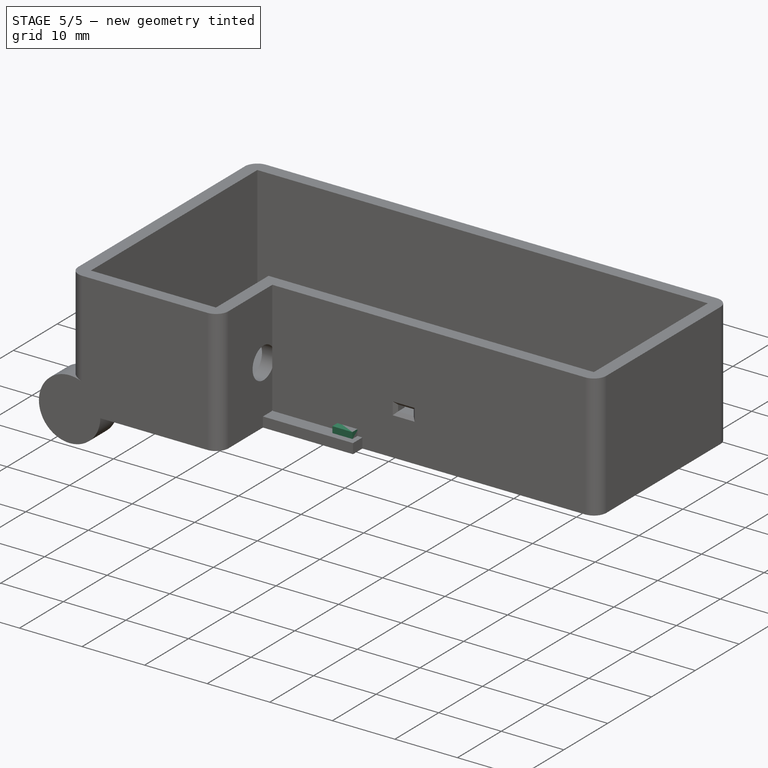
[diagram: stage 5 of 5 — iso view after this stage's code; geometry added in this stage tinted green]
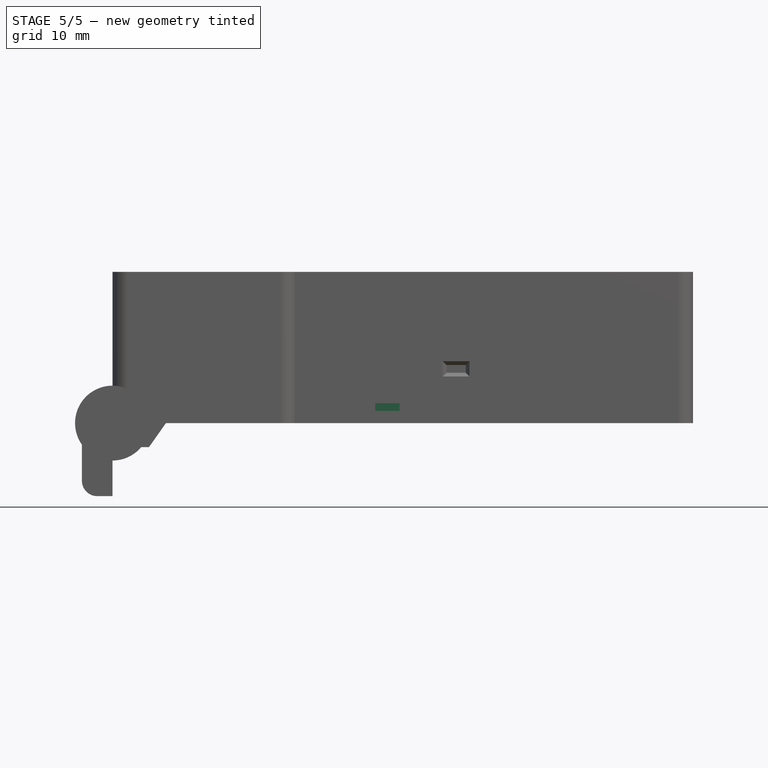
[diagram: stage 5 of 5 — front view after this stage's code; geometry added in this stage tinted green]
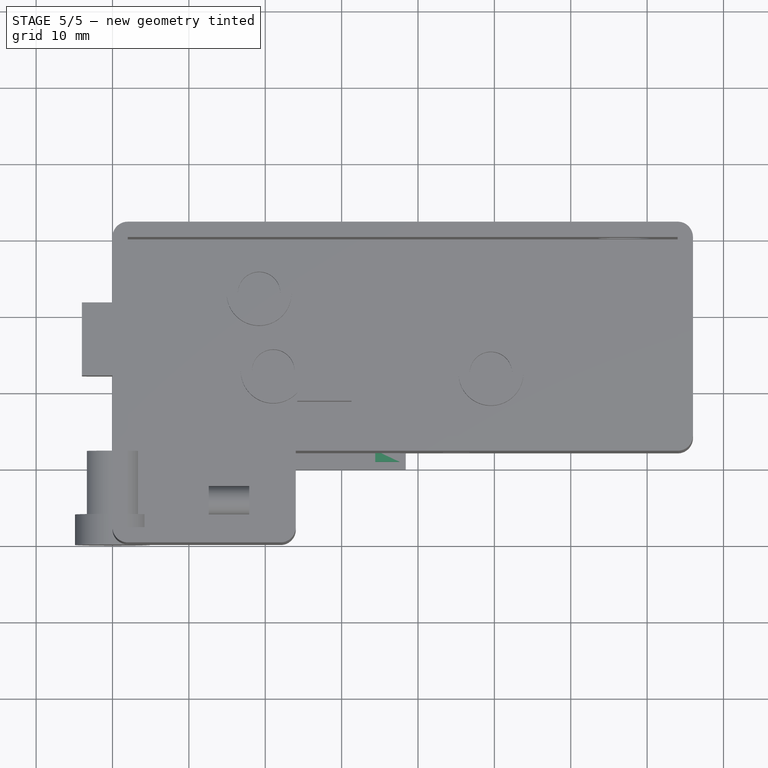
[diagram: stage 5 of 5 — top view after this stage's code; geometry added in this stage tinted green]
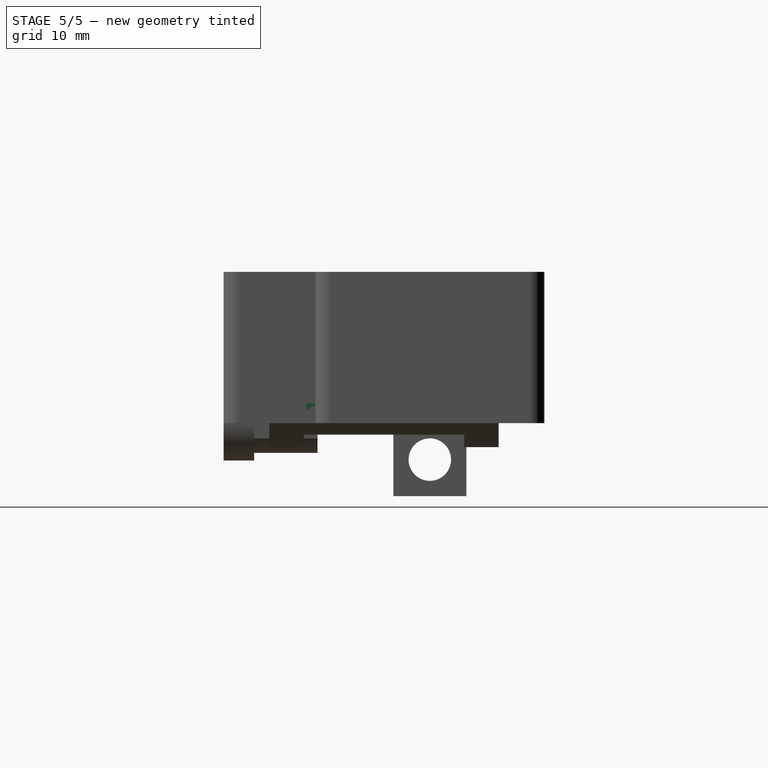
[diagram: stage 5 of 5 — right view after this stage's code; geometry added in this stage tinted green]
FEATURE [PartDesign::Point] DatumPoint
  AttacherType = Attacher::AttachEnginePoint
  MapMode = 37
  Placement = pos=(27.75,23.05,7) rot=(0,0,1;0rad)
  Support = -> [Pad004]
FEATURE [Sketcher::SketchObject] Sketch007
  FullyConstrained = true
  MapMode = 5
  Support = -> [XY_Plane002]
  expr: Constraints[12] = Spreadsheet.BaseHeight
  expr: Constraints[13] = Spreadsheet.BaseWidth
  expr: Constraints[14] = Spreadsheet.Base_Notch_Width
  expr: Constraints[15] = Spreadsheet.Base_Notch_Height
  sketch-geometry (6):
    g0: LineSegment StartX=0 StartY=0 StartZ=0 EndX=0 EndY=42 EndZ=0
    g1: LineSegment StartX=0 StartY=42 StartZ=0 EndX=76 EndY=42 EndZ=0
    g2: LineSegment StartX=76 StartY=42 StartZ=0 EndX=76 EndY=12 EndZ=0
    g3: LineSegment StartX=76 StartY=12 StartZ=0 EndX=24 EndY=12 EndZ=0
    g4: LineSegment StartX=24 StartY=12 StartZ=0 EndX=24 EndY=0 EndZ=0
    g5: LineSegment StartX=24 StartY=0 StartZ=0 EndX=0 EndY=0 EndZ=0
  constraints (17):
    c: Vertical(g0)
    c: Coincident(g1,g0)
    c: Horizontal(g1)
    c: Coincident(g2,g1)
    c: Vertical(g2)
    c: Coincident(g3,g2)
    c: Horizontal(g3)
    c: Coincident(g4,g3)
    c: Vertical(g4)
    c: Coincident(g5,g4)
    c: Coincident(g5,g0)
    c: Horizontal(g5)
    c: DistanceY(g0,g0) = 42
    c: DistanceX(g1,g1) = 76
    c: DistanceX(g5,g5) = 24
    c: DistanceY(g4,g4) = 12
    c: Coincident(g0,g-1)
FEATURE [PartDesign::Pad] Pad005
  Direction = (1,1,1)
  Length = 2
  Length2 = 100
  Profile = -> Sketch007
  Type = 0
  expr: Length = Spreadsheet.Wall_Thickness
FEATURE [PartDesign::Fillet] Fillet001
  Base = -> Pad005 [Edge2,Edge1,Edge14,Edge8,Edge5,Edge11]
  BaseFeature = -> Pad005
  Radius = 2
  SupportTransform = false
FEATURE [PartDesign::Fillet] Fillet002
  Base = -> Fillet001 [Face5]
  BaseFeature = -> Fillet001
  Radius = 1.9
  SupportTransform = false
FEATURE [Sketcher::SketchObject] Sketch008
  FullyConstrained = true
  MapMode = 5
  Placement = pos=(0,0,2) rot=(0,0,1;0rad)
  Support = -> [Fillet002]
  sketch-geometry (6):
    g0: GeomPoint X=36.75 Y=27.2 Z=0
    g1: LineSegment StartX=31.625 StartY=32.325 StartZ=0 EndX=41.875 EndY=32.325 EndZ=0
    g2: LineSegment StartX=41.875 StartY=32.325 StartZ=0 EndX=41.875 EndY=22.075 EndZ=0
    g3: LineSegment StartX=41.875 StartY=22.075 StartZ=0 EndX=31.625 EndY=22.075 EndZ=0
    g4: LineSegment StartX=31.625 StartY=22.075 StartZ=0 EndX=31.625 EndY=32.325 EndZ=0
    g5: LineSegment StartX=41.875 StartY=22.075 StartZ=0 EndX=31.625 EndY=32.325 EndZ=0
  constraints (15):
    c: DistanceX(g-1,g0) = 36.75
    c: DistanceY(g-1,g0) = 27.2
    c: Coincident(g1,g2)
    c: Coincident(g2,g3)
    c: Coincident(g3,g4)
    c: Coincident(g4,g1)
    c: Horizontal(g1)
    c: Horizontal(g3)
    c: Vertical(g2)
    c: Vertical(g4)
    c: Coincident(g5,g2)
    c: Coincident(g5,g1)
    c: Equal(g1,g2)
    c: DistanceX(g1,g1) = 10.25
    c: Symmetric(g2,g1,g0)
FEATURE [PartDesign::Pocket] Pocket001
  BaseFeature = -> Fillet002
  Length = 5
  Length2 = 100
  Profile = -> Sketch008
  Type = 1
FEATURE [PartDesign::Chamfer] Chamfer
  Angle = 45
  Base = -> Pocket001 [Edge42,Edge43,Edge44,Edge41]
  BaseFeature = -> Pocket001
  ChamferType = 0
  FlipDirection = false
  Size = 1
  Size2 = 1
  SupportTransform = false
FEATURE [PartDesign::Body] Body002  label="Lid"
  Group = -> [Sketch007,Pad005,Fillet001,Fillet002,Sketch008,Pocket001,Chamfer]
  Origin = -> Origin002
  Placement = pos=(0,0,19.8) rot=(0,0,1;0rad)
  Tip = -> Chamfer
  expr: .Placement.Base.z = Spreadsheet.BoxInsideDepth + Spreadsheet.Wall_Thickness
FEATURE [Sketcher::SketchObject] Sketch009
  ExternalGeometry = -> [Pad004]
  FullyConstrained = true
  MapMode = 5
  Placement = pos=(0,0,1.6) rot=(0,0,1;0rad)
  Support = -> [Pad004]
  sketch-geometry (5):
    g0: GeomPoint X=36 Y=10.85 Z=0
    g1: LineSegment StartX=34.4 StartY=12.35 StartZ=0 EndX=37.6 EndY=12.35 EndZ=0
    g2: LineSegment StartX=37.6 StartY=12.35 StartZ=0 EndX=37.6 EndY=10.85 EndZ=0
    g3: LineSegment StartX=37.6 StartY=10.85 StartZ=0 EndX=34.4 EndY=10.85 EndZ=0
    g4: LineSegment StartX=34.4 StartY=10.85 StartZ=0 EndX=34.4 EndY=12.35 EndZ=0
  constraints (13):
    c: DistanceX(g-1,g0) = 36
    c: Coincident(g1,g2)
    c: Coincident(g2,g3)
    c: Coincident(g3,g4)
    c: Coincident(g4,g1)
    c: Horizontal(g1)
    c: Horizontal(g3)
    c: Vertical(g2)
    c: Vertical(g4)
    c: DistanceX(g1,g1) = 3.2
    c: DistanceY(g2,g2) = 1.5
    c: Symmetric(g2,g3,g0)
    c: DistanceY(g-1,g0) = 10.85
FEATURE [PartDesign::Pad] Pad006  label="Led"
  BaseFeature = -> Pad004
  Direction = (1,1,1)
  Length = 1
  Length2 = 100
  Profile = -> Sketch009
  Type = 0
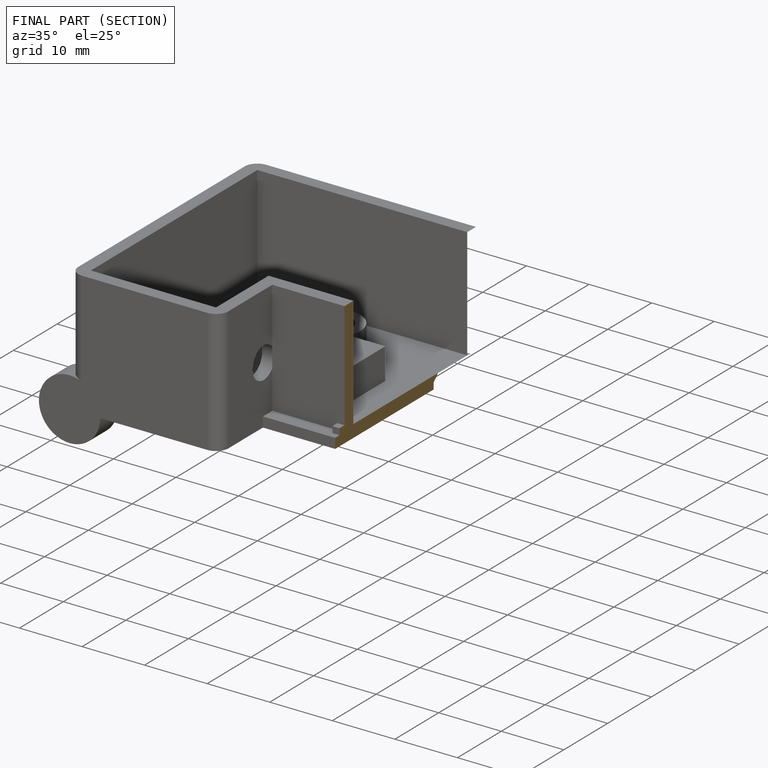
[diagram: finished part — half-section view (interior)]
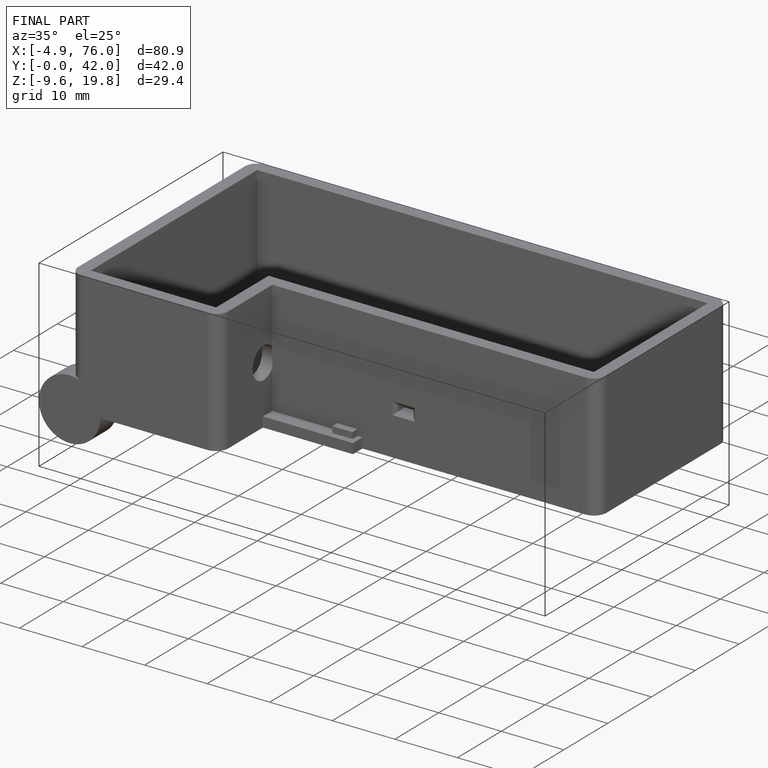
[diagram: finished part — iso view with bounding-box wireframe]
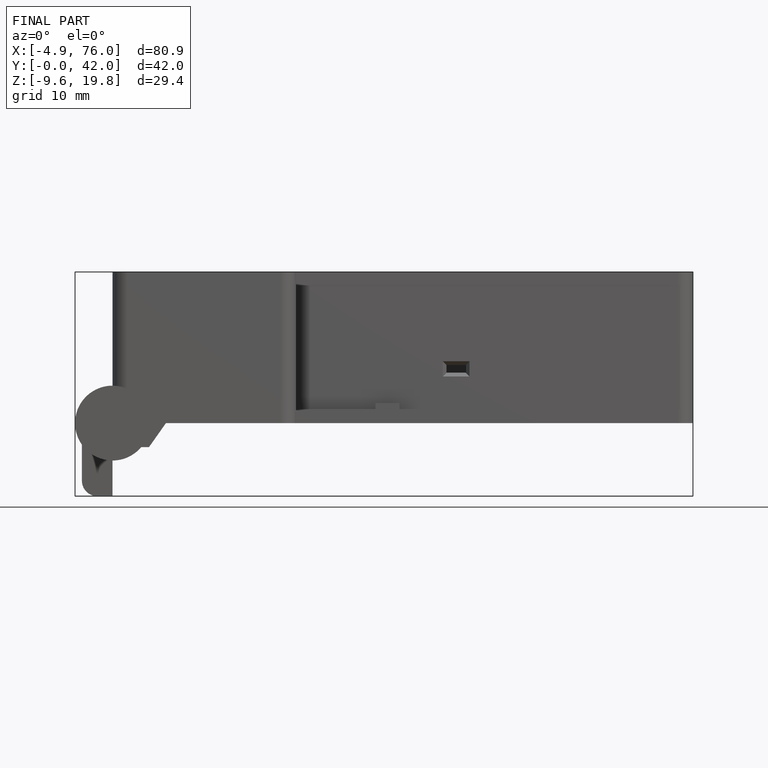
[diagram: finished part — front view with bounding-box wireframe]
